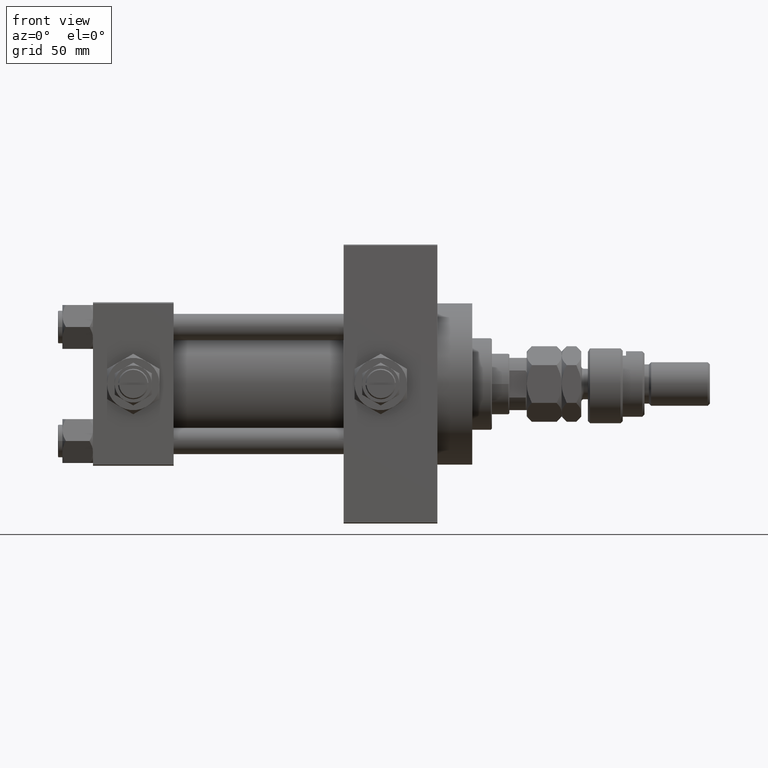
[diagram: clean part render]
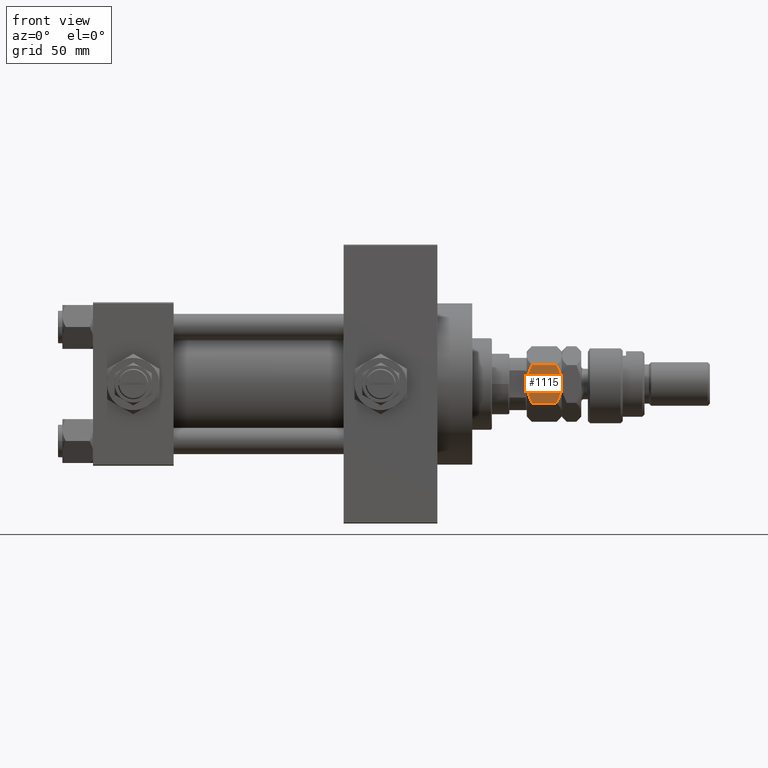
[diagram: same view with one face highlighted and labeled with its STEP entity id]
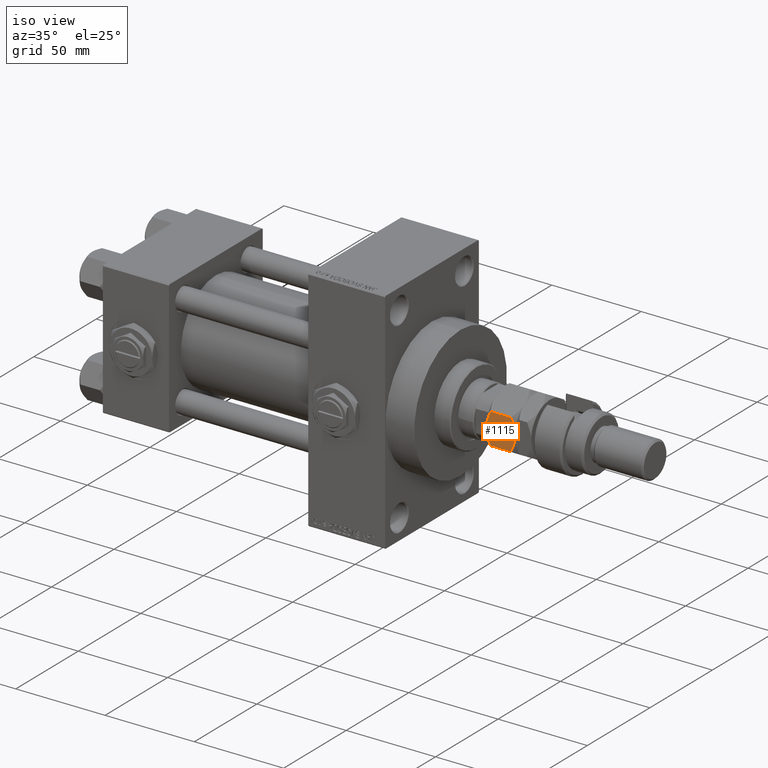
[diagram: same view with one face highlighted and labeled with its STEP entity id]
A machine part, front view. The second image highlights one B-rep face of the part: STEP entity #1115.
A second angle (iso view) of the same face is appended — the face is thin or edge-on in the first view.
In plain terms, the highlighted planar face has unit normal (0, 1, 0).
Its self-contained STEP definition (entity closure, byte-faithful):
#227 = CARTESIAN_POINT ( 'NONE',  ( 15.00000000000000000, -8.660254037844389075, 16.00000000000000000 ) ) ;
#978 = CARTESIAN_POINT ( 'NONE',  ( 15.00000000000000000, -8.660254037844389075, 13.67949192431123961 ) ) ;
#1115 = ADVANCED_FACE ( 'NONE', ( #8602 ), #7835, .F. ) ;
#1505 = CARTESIAN_POINT ( 'NONE',  ( -3.416099238086855886E-15, -17.32050807568877104, 13.67949192431124317 ) ) ;
#2114 = CARTESIAN_POINT ( 'NONE',  ( -3.416099238086855886E-15, -17.32050807568877104, 13.67949192431124317 ) ) ;
#2280 = CARTESIAN_POINT ( 'NONE',  ( -2.796947266322166691E-15, -17.32050807568877104, 2.320508075688761718 ) ) ;
#3495 = CARTESIAN_POINT ( 'NONE',  ( 7.499999999999993783, -12.99038105676658006, 16.00000000000000000 ) ) ;
#3930 = EDGE_CURVE ( 'NONE', #27935, #12695, #14829, .T. ) ;
#4116 = CARTESIAN_POINT ( 'NONE',  ( 6.195449321423083688, -13.74356374221447119, -1.770863548392988866E-15 ) ) ;
#4826 = ORIENTED_EDGE ( 'NONE', *, *, #20215, .F. ) ;
#5053 = CARTESIAN_POINT ( 'NONE',  ( 12.62116548881249756, -10.03367478323606754, 1.064486067744006892 ) ) ;
#5578 = CARTESIAN_POINT ( 'NONE',  ( 7.499999999999994671, -12.99038105676658184, 0.000000000000000000 ) ) ;
#5790 = ORIENTED_EDGE ( 'NONE', *, *, #28165, .F. ) ;
#5800 = CARTESIAN_POINT ( 'NONE',  ( 1.176108425306638505, -16.64148155974179488, 14.35851844025821755 ) ) ;
#7026 = CARTESIAN_POINT ( 'NONE',  ( 12.61607045183964360, -10.03661640420387080, 14.93952096862912171 ) ) ;
#7835 = PLANE ( 'NONE',  #20564 ) ;
#7971 = ORIENTED_EDGE ( 'NONE', *, *, #16688, .T. ) ;
#8602 = FACE_OUTER_BOUND ( 'NONE', #11870, .T. ) ;
#8747 = CARTESIAN_POINT ( 'NONE',  ( -3.035766082959412415E-15, -17.32050807568877104, 16.00000000000000000 ) ) ;
#9282 = CARTESIAN_POINT ( 'NONE',  ( 13.82389157469335750, -9.339280553791367012, 1.641481559741792884 ) ) ;
#9548 = CARTESIAN_POINT ( 'NONE',  ( 8.823580389329300999, -12.22621156269320331, 0.05953537397470176629 ) ) ;
#10042 = CARTESIAN_POINT ( 'NONE',  ( 4.881674457977372761, -14.50207201327941320, 15.71619733805371411 ) ) ;
#11558 = DIRECTION ( 'NONE',  ( -0.4999999999999996669, 0.8660254037844388186, 0.000000000000000000 ) ) ;
#11870 = EDGE_LOOP ( 'NONE', ( #4826, #5790, #42952, #48506, #7971, #30269 ) ) ;
#12695 = VERTEX_POINT ( 'NONE', #2280 ) ;
#13165 = B_SPLINE_CURVE_WITH_KNOTS ( 'NONE', 3,
 ( #18665, #23137, #34981, #7026, #47336, #43122 ),
 .UNSPECIFIED., .F., .F.,
 ( 4, 2, 4 ),
 ( 0.008977392552884447263, 0.01343452311421656532, 0.01789165367554868338 ),
 .UNSPECIFIED. ) ;
#13514 = CARTESIAN_POINT ( 'NONE',  ( 10.11832554202262102, -11.47869010025374870, 0.2838026619462938327 ) ) ;
#14032 = CARTESIAN_POINT ( 'NONE',  ( 7.499999999999994671, -12.99038105676658184, 0.000000000000000000 ) ) ;
#14702 = B_SPLINE_CURVE_WITH_KNOTS ( 'NONE', 3,
 ( #37749, #9282, #5053, #46156, #13514, #9548, #17995, #5578 ),
 .UNSPECIFIED., .F., .F.,
 ( 4, 2, 2, 4 ),
 ( 2.544309033642853415E-07, 0.004488823491893907842, 0.006733108022389181456, 0.008977392552884455937 ),
 .UNSPECIFIED. ) ;
#14829 = B_SPLINE_CURVE_WITH_KNOTS ( 'NONE', 3,
 ( #40244, #4116, #35260, #20236, #48379, #19458 ),
 .UNSPECIFIED., .F., .F.,
 ( 4, 2, 4 ),
 ( 0.008977392552884455937, 0.01343452311421657053, 0.01789165367554868685 ),
 .UNSPECIFIED. ) ;
#16356 = DIRECTION ( 'NONE',  ( -0.000000000000000000, -0.000000000000000000, -1.000000000000000000 ) ) ;
#16372 = VERTEX_POINT ( 'NONE', #47944 ) ;
#16688 = EDGE_CURVE ( 'NONE', #18069, #12695, #44822, .T. ) ;
#17995 = CARTESIAN_POINT ( 'NONE',  ( 8.156876182308243628, -12.61113341608666083, -1.722865014715246890E-15 ) ) ;
#18069 = VERTEX_POINT ( 'NONE', #1505 ) ;
#18665 = CARTESIAN_POINT ( 'NONE',  ( 7.499999999999993783, -12.99038105676658006, 16.00000000000000000 ) ) ;
#19093 = VERTEX_POINT ( 'NONE', #978 ) ;
#19458 = CARTESIAN_POINT ( 'NONE',  ( -2.796947266322166691E-15, -17.32050807568877104, 2.320508075688761718 ) ) ;
#20215 = EDGE_CURVE ( 'NONE', #16372, #27935, #14702, .T. ) ;
#20236 = CARTESIAN_POINT ( 'NONE',  ( 2.383929548160349299, -15.94414570932928576, 1.060479031370876957 ) ) ;
#20247 = DIRECTION ( 'NONE',  ( -0.8660254037844388186, -0.4999999999999996669, 0.000000000000000000 ) ) ;
#20564 = AXIS2_PLACEMENT_3D ( 'NONE', #51842, #11558, #20247 ) ;
#20760 = B_SPLINE_CURVE_WITH_KNOTS ( 'NONE', 3,
 ( #2114, #5800, #50065, #30080, #10042, #34281, #30344, #46378 ),
 .UNSPECIFIED., .F., .F.,
 ( 4, 2, 2, 4 ),
 ( 2.544309033646407248E-07, 0.004488823491893905240, 0.006733108022389175384, 0.008977392552884447263 ),
 .UNSPECIFIED. ) ;
#23137 = CARTESIAN_POINT ( 'NONE',  ( 8.804550678576907430, -12.23719837131869248, 16.00000000000000000 ) ) ;
#23770 = EDGE_CURVE ( 'NONE', #18069, #28964, #20760, .T. ) ;
#24834 = DIRECTION ( 'NONE',  ( -0.000000000000000000, -0.000000000000000000, -1.000000000000000000 ) ) ;
#26460 = VECTOR ( 'NONE', #24834, 1000.000000000000000 ) ;
#27711 = LINE ( 'NONE', #227, #46922 ) ;
#27935 = VERTEX_POINT ( 'NONE', #14032 ) ;
#28165 = EDGE_CURVE ( 'NONE', #19093, #16372, #27711, .T. ) ;
#28964 = VERTEX_POINT ( 'NONE', #3495 ) ;
#30080 = CARTESIAN_POINT ( 'NONE',  ( 4.247772349543483372, -14.86805556622359425, 15.55242859148698109 ) ) ;
#30269 = ORIENTED_EDGE ( 'NONE', *, *, #3930, .F. ) ;
#30344 = CARTESIAN_POINT ( 'NONE',  ( 6.843123817691747490, -13.36962869744650284, 16.00000000000000711 ) ) ;
#32904 = EDGE_CURVE ( 'NONE', #28964, #19093, #13165, .T. ) ;
#34281 = CARTESIAN_POINT ( 'NONE',  ( 6.176419610670694560, -13.75455055083996214, 15.94046462602530312 ) ) ;
#34981 = CARTESIAN_POINT ( 'NONE',  ( 10.08691881950258917, -11.49682277995505331, 15.76967007806078591 ) ) ;
#35260 = CARTESIAN_POINT ( 'NONE',  ( 4.913081180497406386, -14.48393933357810681, 0.2303299219392160313 ) ) ;
#37749 = CARTESIAN_POINT ( 'NONE',  ( 15.00000000000000000, -8.660254037844389075, 2.320508075688767047 ) ) ;
#40244 = CARTESIAN_POINT ( 'NONE',  ( 7.499999999999994671, -12.99038105676658184, 0.000000000000000000 ) ) ;
#42952 = ORIENTED_EDGE ( 'NONE', *, *, #32904, .F. ) ;
#43122 = CARTESIAN_POINT ( 'NONE',  ( 15.00000000000000000, -8.660254037844389075, 13.67949192431123961 ) ) ;
#44822 = LINE ( 'NONE', #8747, #26460 ) ;
#46156 = CARTESIAN_POINT ( 'NONE',  ( 10.75222765045651308, -11.11270654730956586, 0.4475714085130263475 ) ) ;
#46378 = CARTESIAN_POINT ( 'NONE',  ( 7.499999999999993783, -12.99038105676658006, 16.00000000000000000 ) ) ;
#46922 = VECTOR ( 'NONE', #16356, 1000.000000000000000 ) ;
#47336 = CARTESIAN_POINT ( 'NONE',  ( 13.82525345580783416, -9.338494271363316557, 14.35773215783021861 ) ) ;
#47944 = CARTESIAN_POINT ( 'NONE',  ( 15.00000000000000000, -8.660254037844389075, 2.320508075688767047 ) ) ;
#48379 = CARTESIAN_POINT ( 'NONE',  ( 1.174746544192159625, -16.64226784216984711, 1.642267842169777836 ) ) ;
#48506 = ORIENTED_EDGE ( 'NONE', *, *, #23770, .F. ) ;
#50065 = CARTESIAN_POINT ( 'NONE',  ( 2.378834511187501111, -15.94708733029709791, 14.93551393225600066 ) ) ;
#51842 = CARTESIAN_POINT ( 'NONE',  ( -3.035766082959412415E-15, -17.32050807568877104, 16.00000000000000000 ) ) ;